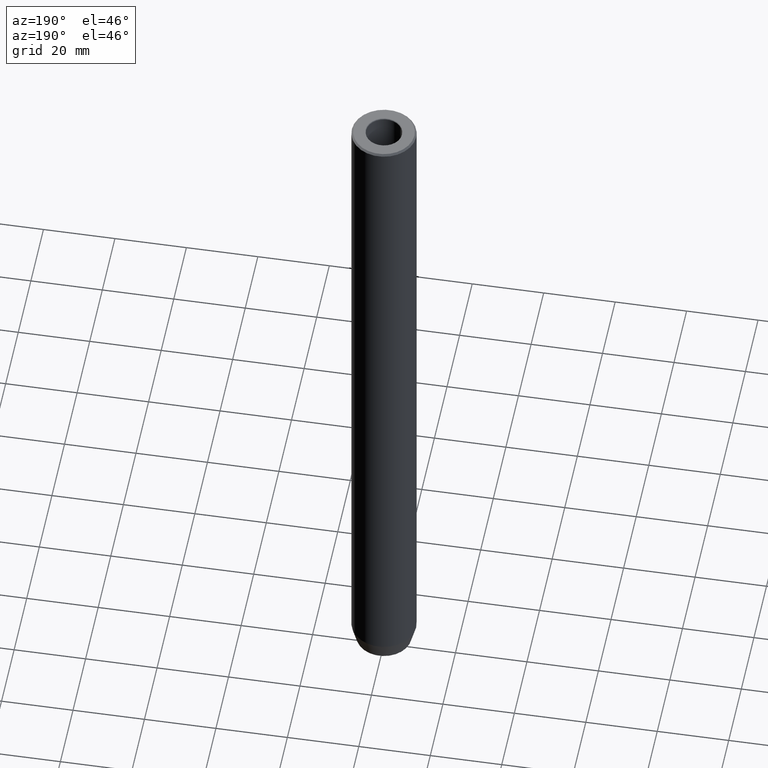
[diagram: clean part render]
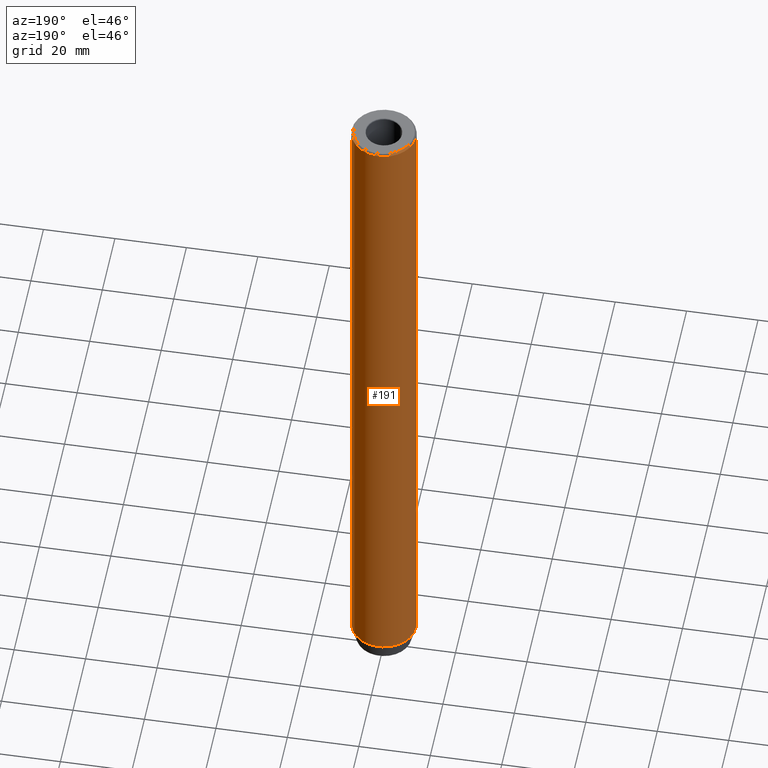
[diagram: same view with one face highlighted and labeled with its STEP entity id]
A machine part, auxiliary view. The second image highlights one B-rep face of the part: STEP entity #191.
In plain terms, the highlighted cylindrical surface (edge-blend (fillet) strip) has radius 9 mm, axis along (-0, -0, 1).
Its self-contained STEP definition (entity closure, byte-faithful):
#5 = CARTESIAN_POINT ( 'NONE',  ( 0.000000000000000000, 0.000000000000000000, -195.0000000000000000 ) ) ;
#6 = VERTEX_POINT ( 'NONE', #570 ) ;
#47 = VECTOR ( 'NONE', #538, 1000.000000000000000 ) ;
#58 = CIRCLE ( 'NONE', #247, 9.000000000000000000 ) ;
#94 = CIRCLE ( 'NONE', #334, 9.000000000000000000 ) ;
#96 = VERTEX_POINT ( 'NONE', #587 ) ;
#99 = DIRECTION ( 'NONE',  ( 1.000000000000000000, 0.000000000000000000, 0.000000000000000000 ) ) ;
#131 = DIRECTION ( 'NONE',  ( -0.000000000000000000, -0.000000000000000000, 1.000000000000000000 ) ) ;
#136 = EDGE_LOOP ( 'NONE', ( #365, #228, #179, #406 ) ) ;
#143 = EDGE_CURVE ( 'NONE', #505, #6, #94, .T. ) ;
#147 = CYLINDRICAL_SURFACE ( 'NONE', #284, 9.000000000000000000 ) ;
#174 = CARTESIAN_POINT ( 'NONE',  ( -9.000000000000000000, 1.102182119232617714E-15, 0.000000000000000000 ) ) ;
#179 = ORIENTED_EDGE ( 'NONE', *, *, #143, .T. ) ;
#186 = EDGE_CURVE ( 'NONE', #331, #6, #589, .T. ) ;
#191 = ADVANCED_FACE ( 'NONE', ( #295 ), #147, .T. ) ;
#228 = ORIENTED_EDGE ( 'NONE', *, *, #509, .T. ) ;
#237 = EDGE_CURVE ( 'NONE', #331, #96, #58, .T. ) ;
#241 = DIRECTION ( 'NONE',  ( -0.000000000000000000, -0.000000000000000000, 1.000000000000000000 ) ) ;
#247 = AXIS2_PLACEMENT_3D ( 'NONE', #5, #241, #586 ) ;
#284 = AXIS2_PLACEMENT_3D ( 'NONE', #445, #593, #293 ) ;
#293 = DIRECTION ( 'NONE',  ( 1.000000000000000000, 0.000000000000000000, 0.000000000000000000 ) ) ;
#295 = FACE_OUTER_BOUND ( 'NONE', #136, .T. ) ;
#317 = CARTESIAN_POINT ( 'NONE',  ( 9.000000000000000000, 0.000000000000000000, -195.0000000000000000 ) ) ;
#331 = VERTEX_POINT ( 'NONE', #317 ) ;
#334 = AXIS2_PLACEMENT_3D ( 'NONE', #543, #443, #99 ) ;
#343 = VECTOR ( 'NONE', #131, 1000.000000000000000 ) ;
#365 = ORIENTED_EDGE ( 'NONE', *, *, #237, .T. ) ;
#406 = ORIENTED_EDGE ( 'NONE', *, *, #186, .F. ) ;
#443 = DIRECTION ( 'NONE',  ( 0.000000000000000000, 0.000000000000000000, -1.000000000000000000 ) ) ;
#445 = CARTESIAN_POINT ( 'NONE',  ( 0.000000000000000000, 0.000000000000000000, 0.000000000000000000 ) ) ;
#473 = CARTESIAN_POINT ( 'NONE',  ( -9.000000000000000000, 1.102182119232617714E-15, -0.4999999999999952260 ) ) ;
#505 = VERTEX_POINT ( 'NONE', #473 ) ;
#509 = EDGE_CURVE ( 'NONE', #96, #505, #619, .T. ) ;
#538 = DIRECTION ( 'NONE',  ( -0.000000000000000000, -0.000000000000000000, 1.000000000000000000 ) ) ;
#542 = CARTESIAN_POINT ( 'NONE',  ( 9.000000000000000000, 0.000000000000000000, 0.000000000000000000 ) ) ;
#543 = CARTESIAN_POINT ( 'NONE',  ( 0.000000000000000000, 0.000000000000000000, -0.4999999999999952260 ) ) ;
#570 = CARTESIAN_POINT ( 'NONE',  ( 9.000000000000000000, 0.000000000000000000, -0.4999999999999952260 ) ) ;
#586 = DIRECTION ( 'NONE',  ( 1.000000000000000000, 0.000000000000000000, 0.000000000000000000 ) ) ;
#587 = CARTESIAN_POINT ( 'NONE',  ( -9.000000000000000000, 1.102182119232617714E-15, -195.0000000000000000 ) ) ;
#589 = LINE ( 'NONE', #542, #47 ) ;
#593 = DIRECTION ( 'NONE',  ( -0.000000000000000000, -0.000000000000000000, 1.000000000000000000 ) ) ;
#619 = LINE ( 'NONE', #174, #343 ) ;